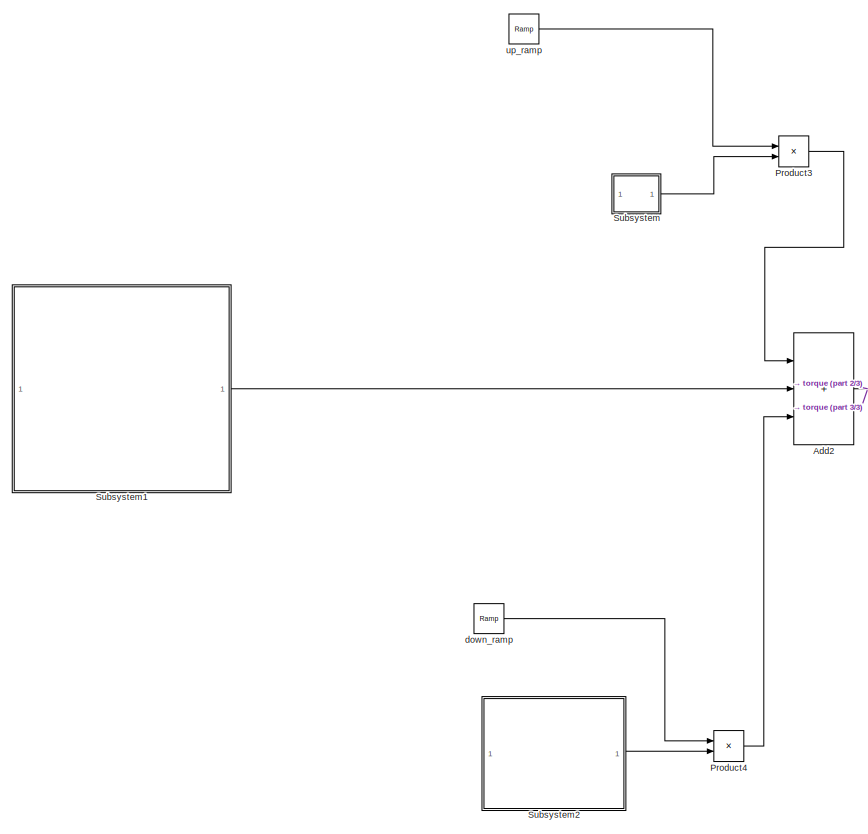
[diagram: root canvas - part 1/3, left side, full height]
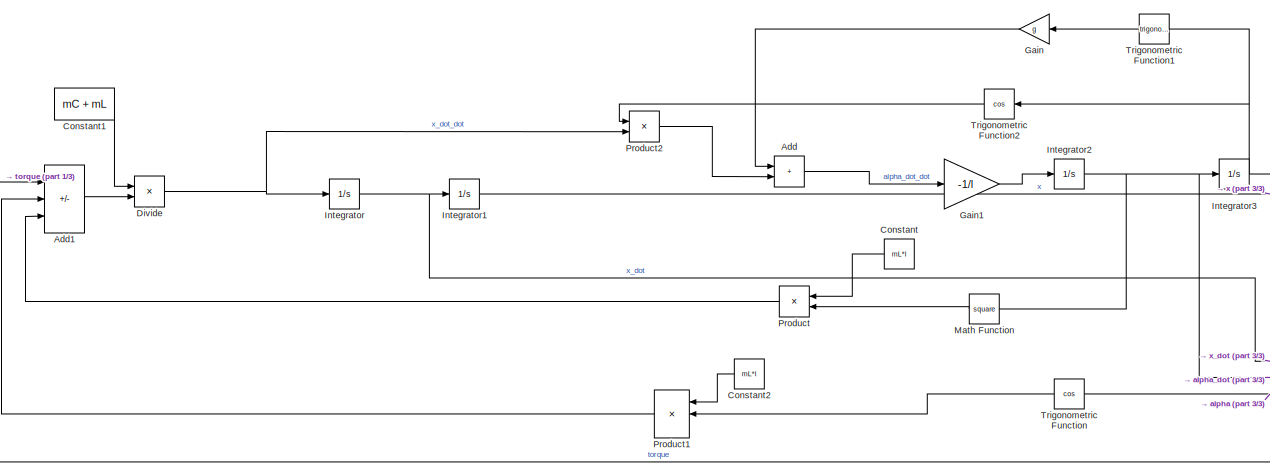
[diagram: root canvas - part 2/3, bottom center region]
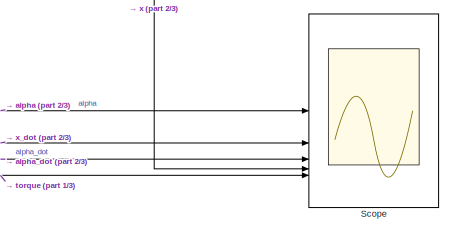
[diagram: root canvas - part 3/3, bottom right region]
MODEL slx_87e7c8f6185c
KIND model
CONFIG AbsTol = auto
CONFIG EnableMultiTasking = off
CONFIG FixedStep = auto
CONFIG MaxStep = auto
CONFIG MinStep = auto
CONFIG RelTol = 1e-3
CONFIG SampleTimeConstraint = Unconstrained
CONFIG SolverName = VariableStepAuto
CONFIG StartTime = 0.0
CONFIG StopTime = 150
BLOCK [Sum] Add
  IconShape = rectangular
BLOCK [Sum] Add1
  IconShape = rectangular
  Inputs = +-+
BLOCK [Sum] Add2
  IconShape = rectangular
  Inputs = +++
BLOCK [Constant] Constant
  Value = mL*l
BLOCK [Constant] Constant1
  Value = mC + mL
BLOCK [Constant] Constant2
  Value = mL*l
BLOCK [Product] Divide
  Inputs = /*
BLOCK [Gain] Gain
  Gain = g
BLOCK [Gain] Gain1
  Gain = -1/l
BLOCK [Integrator] Integrator
BLOCK [Integrator] Integrator1
BLOCK [Integrator] Integrator2
BLOCK [Integrator] Integrator3
BLOCK [Math] Math Function
  Operator = square
BLOCK [Product] Product
BLOCK [Product] Product1
  Inputs = 3
BLOCK [Product] Product2
BLOCK [Product] Product3
BLOCK [Product] Product4
BLOCK [Scope] Scope
  Floating = off
  NumInputPorts = 5
  ScopeSpecificationString = Simulink.scopes.TimeScopeBlockCfg('CurrentConfiguration', extmgr.ConfigurationSet(extmgr.Configuration('Core','General UI',true),extmgr.Configuration('Core','Source UI',true),extmgr.Configuration('Sources','WiredSimulink',true),extmgr.Configuration('Visuals','Time Domain',true,'SerializedDisplays',{struct('MinYLimReal','-0.00078','MaxYLimReal','0.00021','YLabelReal','','MinYLimMag','0.00000','MaxY...<+6896ch>
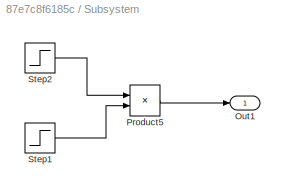
BLOCK [SubSystem] Subsystem
BLOCK [Outport] Subsystem/Out1
BLOCK [Product] Subsystem/Product5
BLOCK [Step] Subsystem/Step1
  After = 0
  Before = 1
  SampleTime = 0
  Time = startTime
BLOCK [Step] Subsystem/Step2
  SampleTime = 0
  Time = 0
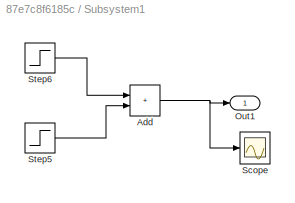
BLOCK [SubSystem] Subsystem1
BLOCK [Sum] Subsystem1/Add
  IconShape = rectangular
BLOCK [Outport] Subsystem1/Out1
BLOCK [Scope] Subsystem1/Scope
  Floating = off
  NumInputPorts = 1
  ScopeSpecificationString = Simulink.scopes.TimeScopeBlockCfg('CurrentConfiguration', extmgr.ConfigurationSet(extmgr.Configuration('Core','General UI',true),extmgr.Configuration('Core','Source UI',true),extmgr.Configuration('Sources','WiredSimulink',true,'DataLoggingVariableName','ScopeData2'),extmgr.Configuration('Visuals','Time Domain',true,'SerializedDisplays',{struct('MinYLimReal','-25.00000','MaxYLimReal','225.00000','Y...<+1461ch>
BLOCK [Step] Subsystem1/Step5
  After = -max_torque
  SampleTime = 0
  Time = finalTime
BLOCK [Step] Subsystem1/Step6
  After = max_torque
  SampleTime = 0
  Time = startTime
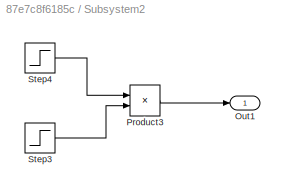
BLOCK [SubSystem] Subsystem2
BLOCK [Outport] Subsystem2/Out1
BLOCK [Product] Subsystem2/Product3
BLOCK [Step] Subsystem2/Step3
  After = 0
  Before = 1
  SampleTime = 0
  Time = endTime
BLOCK [Step] Subsystem2/Step4
  SampleTime = 0
  Time = finalTime
BLOCK [Trigonometry] Trigonometric Function
  Operator = cos
BLOCK [Trigonometry] Trigonometric Function1
BLOCK [Trigonometry] Trigonometric Function2
  Operator = cos
BLOCK [Reference] down_ramp  REF=simulink/Sources/Ramp
  SourceBlock = simulink/Sources/Ramp
  SourceType = Ramp
BLOCK [Reference] up_ramp  REF=simulink/Sources/Ramp
  SourceBlock = simulink/Sources/Ramp
  SourceType = Ramp
LINE Add1:1 -> Divide:2
NET Add2:1 -> Add1:1, Scope:5
LINE Add:1 -> Gain1:1
LINE Constant1:1 -> Divide:1
LINE Constant2:1 -> Product1:1
LINE Constant:1 -> Product:1
NET Divide:1 -> Integrator:1, Product2:2
LINE Gain1:1 -> Integrator2:1
LINE Gain:1 -> Add:1
LINE Integrator1:1 -> Scope:4
NET Integrator2:1 -> Integrator3:1, Math Function:1, Scope:3
NET Integrator3:1 -> Scope:1, Trigonometric Function1:1, Trigonometric Function2:1, Trigonometric Function:1
NET Integrator:1 -> Integrator1:1, Scope:2
LINE Math Function:1 -> Product:2
LINE Product1:1 -> Add1:2
LINE Product2:1 -> Add:2
LINE Product3:1 -> Add2:1
LINE Product4:1 -> Add2:3
LINE Product:1 -> Add1:3
LINE Subsystem/Product5:1 -> Subsystem/Out1:1
LINE Subsystem/Step1:1 -> Subsystem/Product5:2
LINE Subsystem/Step2:1 -> Subsystem/Product5:1
NET Subsystem1/Add:1 -> Subsystem1/Out1:1, Subsystem1/Scope:1
LINE Subsystem1/Step5:1 -> Subsystem1/Add:2
LINE Subsystem1/Step6:1 -> Subsystem1/Add:1
LINE Subsystem1:1 -> Add2:2
LINE Subsystem2/Product3:1 -> Subsystem2/Out1:1
LINE Subsystem2/Step3:1 -> Subsystem2/Product3:2
LINE Subsystem2/Step4:1 -> Subsystem2/Product3:1
LINE Subsystem2:1 -> Product4:2
LINE Subsystem:1 -> Product3:2
LINE Trigonometric Function1:1 -> Gain:1
LINE Trigonometric Function2:1 -> Product2:1
LINE Trigonometric Function:1 -> Product1:2
LINE down_ramp:1 -> Product4:1
LINE up_ramp:1 -> Product3:1
note: NET lines group one-source signal fan-out (src -> all destinations, sorted); 1:1 wires keep LINE
